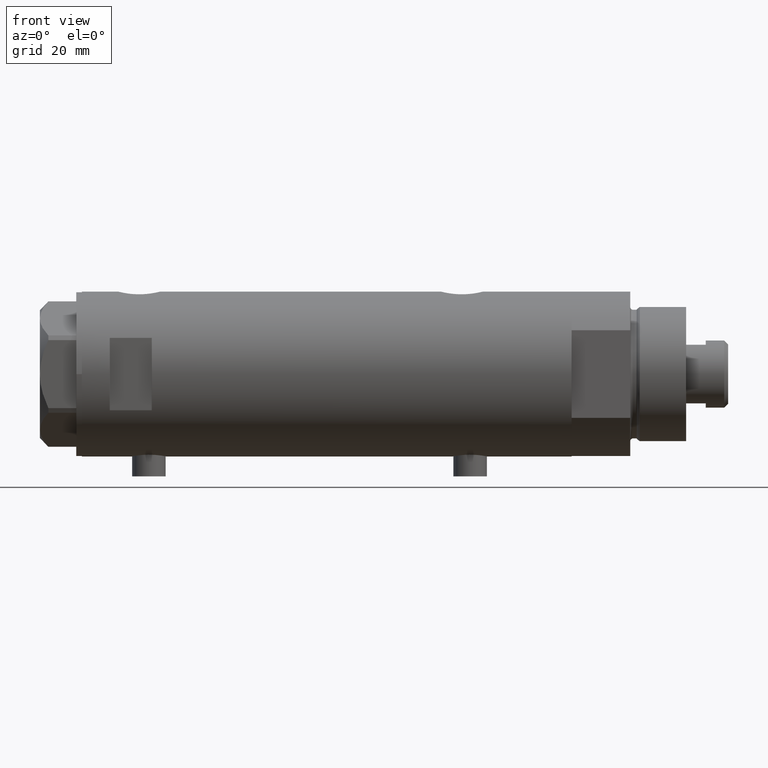
[diagram: clean part render]
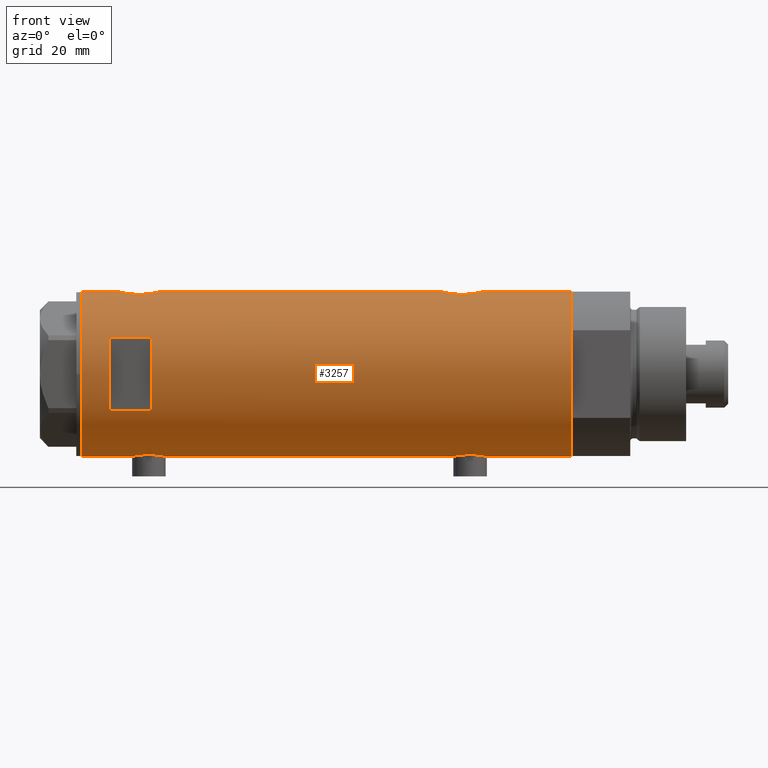
[diagram: same view with one face highlighted and labeled with its STEP entity id]
A machine part, front view. The second image highlights one B-rep face of the part: STEP entity #3257.
In plain terms, the highlighted cylindrical surface (partial cylindrical patch) has radius 29.5 mm, axis along (-1, -0, 0).
Its self-contained STEP definition (entity closure, byte-faithful):
#24 = CARTESIAN_POINT ( 'NONE',  ( 29.50000000000000355, -8.867894669064240341E-21, 74.59999999999999432 ) ) ;
#33 = DIRECTION ( 'NONE',  ( 0.000000000000000000, 0.000000000000000000, 1.000000000000000000 ) ) ;
#51 = EDGE_CURVE ( 'NONE', #3765, #1134, #477, .T. ) ;
#67 = CARTESIAN_POINT ( 'NONE',  ( -29.50000000000000355, 3.612708057484692393E-15, -87.59999999999999432 ) ) ;
#74 = CARTESIAN_POINT ( 'NONE',  ( -29.49152014567325253, -0.8152473631539818300, -57.51035294833331335 ) ) ;
#90 = DIRECTION ( 'NONE',  ( 0.000000000000000000, 0.000000000000000000, 1.000000000000000000 ) ) ;
#135 = CARTESIAN_POINT ( 'NONE',  ( 29.26166309680877475, -3.765013078516707967, 60.59489767946936212 ) ) ;
#146 = CARTESIAN_POINT ( 'NONE',  ( -29.21108587560690495, -4.128853169727751293, 58.89032723090409149 ) ) ;
#155 = CARTESIAN_POINT ( 'NONE',  ( 29.26065241255351523, -3.756597382275435493, 73.59604434819190999 ) ) ;
#165 = CARTESIAN_POINT ( 'NONE',  ( -29.33428005013169226, -3.127775714777723426, 58.18506796127407199 ) ) ;
#174 = CARTESIAN_POINT ( 'NONE',  ( 0.000000000000000000, 0.000000000000000000, -87.59999999999999432 ) ) ;
#179 = CARTESIAN_POINT ( 'NONE',  ( 29.31311917412636348, -3.322476152549144413, 73.82842985264291258 ) ) ;
#204 = CARTESIAN_POINT ( 'NONE',  ( 28.72051071455671334, -6.739402597165489617, -51.72718973703752710 ) ) ;
#226 = CARTESIAN_POINT ( 'NONE',  ( 28.72151714661536204, -6.735173278284145582, -45.06359529429126098 ) ) ;
#233 = CARTESIAN_POINT ( 'NONE',  ( -28.87532468301956712, -6.038983942005351047, 61.97670632311463379 ) ) ;
#235 = VECTOR ( 'NONE', #2536, 1000.000000000000000 ) ;
#259 = CARTESIAN_POINT ( 'NONE',  ( -29.08006251441183565, -4.961575945539723698, 67.40618502052524263 ) ) ;
#260 = EDGE_CURVE ( 'NONE', #1134, #1196, #675, .T. ) ;
#274 = CARTESIAN_POINT ( 'NONE',  ( 28.53064705443910043, -7.500145243772282200, -48.89244703291117844 ) ) ;
#281 = CARTESIAN_POINT ( 'NONE',  ( 29.50000000000000355, 0.000000000000000000, -87.59999999999999432 ) ) ;
#337 = CARTESIAN_POINT ( 'NONE',  ( 29.50000000000000355, -8.867894669064240341E-21, -40.89999999999999858 ) ) ;
#383 = CARTESIAN_POINT ( 'NONE',  ( 29.43916859571210409, -1.954329820671502960, 59.84235520757910365 ) ) ;
#394 = CARTESIAN_POINT ( 'NONE',  ( -29.12379578281189296, -4.705261494361431041, -55.43387957720276660 ) ) ;
#402 = CARTESIAN_POINT ( 'NONE',  ( -29.12311479234994849, -4.702282052053738504, -47.17776471113516124 ) ) ;
#423 = VERTEX_POINT ( 'NONE', #984 ) ;
#427 = CARTESIAN_POINT ( 'NONE',  ( -29.14490888978862415, -4.565669626908229084, -47.02701820123782994 ) ) ;
#443 = VERTEX_POINT ( 'NONE', #1006 ) ;
#448 = CARTESIAN_POINT ( 'NONE',  ( -28.83028160285195440, -6.250189016175739631, -50.89032996785321927 ) ) ;
#462 = CARTESIAN_POINT ( 'NONE',  ( -29.41741605749266952, -2.213861184585005137, -45.45168825548628178 ) ) ;
#473 = VECTOR ( 'NONE', #674, 1000.000000000000000 ) ;
#474 = DIRECTION ( 'NONE',  ( 0.000000000000000000, 0.000000000000000000, 1.000000000000000000 ) ) ;
#477 = LINE ( 'NONE', #2517, #235 ) ;
#512 = DIRECTION ( 'NONE',  ( -0.000000000000000000, -4.625929269271487689E-15, 1.000000000000000000 ) ) ;
#516 = CARTESIAN_POINT ( 'NONE',  ( 28.95619957017310853, -5.640369376407880608, 72.04939726490175644 ) ) ;
#520 = CARTESIAN_POINT ( 'NONE',  ( 28.86327882047615034, -6.097569254709688913, -44.02632909088551827 ) ) ;
#573 = CARTESIAN_POINT ( 'NONE',  ( 12.96148139681573319, -26.49999999999998934, 62.59999999999998721 ) ) ;
#575 = CARTESIAN_POINT ( 'NONE',  ( -12.96148139681573319, -26.49999999999998934, 77.60000000000002274 ) ) ;
#581 = CARTESIAN_POINT ( 'NONE',  ( -28.91427970886709886, -5.849862889315915915, 61.39006866871145718 ) ) ;
#592 = CARTESIAN_POINT ( 'NONE',  ( 29.08168479815708451, -4.954011967599717181, -54.03627368515270035 ) ) ;
#601 = CIRCLE ( 'NONE', #3134, 29.50000000000000355 ) ;
#622 = CARTESIAN_POINT ( 'NONE',  ( 28.59337635119608123, -7.258007499531542450, -46.44783774348638872 ) ) ;
#635 = CARTESIAN_POINT ( 'NONE',  ( -29.50000000000000355, -1.989795151372050188E-15, -45.04999999999999005 ) ) ;
#653 = ORIENTED_EDGE ( 'NONE', *, *, #1883, .F. ) ;
#660 = VERTEX_POINT ( 'NONE', #2650 ) ;
#668 = DIRECTION ( 'NONE',  ( 0.000000000000000000, 0.000000000000000000, 1.000000000000000000 ) ) ;
#674 = DIRECTION ( 'NONE',  ( 0.000000000000000000, 0.000000000000000000, 1.000000000000000000 ) ) ;
#675 = CIRCLE ( 'NONE', #2109, 29.50000000000000355 ) ;
#692 = VECTOR ( 'NONE', #474, 1000.000000000000000 ) ;
#730 = B_SPLINE_CURVE_WITH_KNOTS ( 'NONE', 3,
 ( #2178, #3470, #74, #763, #1117, #4241, #3131, #1773, #1455, #3558, #1416, #394, #2134, #2521, #2449, #2496, #1437, #3887, #792, #2563, #3187, #2164, #448, #2952, #2607, #2708, #4089, #2823, #3227, #1125, #402, #427, #2454, #796, #741, #3184, #462, #2159, #3546, #2060, #1413, #2131, #1516 ),
 .UNSPECIFIED., .F., .F.,
 ( 4, 2, 2, 2, 2, 2, 2, 2, 2, 1, 2, 2, 2, 2, 2, 2, 2, 2, 2, 2, 2, 4 ),
 ( 0.01959598605283713324, 0.02082041500883365093, 0.02204484396483016515, 0.02265705844282842399, 0.02326927292082667936, 0.02449370187682318317, 0.02571813083281968698, 0.02694255978881619079, 0.02755477426681445310, 0.02816698874481271542, 0.02877920322281097426, 0.02939141770080923657, 0.03061584665680577855, 0.03184027561280232399, 0.03306470456879886943, 0.03367691904679714215, 0.03428913352479541488, 0.03551356248079197420, 0.03673799143678854046, 0.03735020591478682705, 0.03796242039278510672, 0.03918684934878167297 ),
 .UNSPECIFIED. ) ;
#731 = CARTESIAN_POINT ( 'NONE',  ( 29.40305664607911140, -2.432276947006145829, 59.98852198993411378 ) ) ;
#741 = CARTESIAN_POINT ( 'NONE',  ( -29.33479068874800433, -3.136645782783870295, -45.87844745385529421 ) ) ;
#744 = DIRECTION ( 'NONE',  ( -0.000000000000000000, -0.000000000000000000, -1.000000000000000000 ) ) ;
#753 = CARTESIAN_POINT ( 'NONE',  ( 28.59279484545187344, -7.260293545345771982, 65.15593442015531878 ) ) ;
#763 = CARTESIAN_POINT ( 'NONE',  ( -29.45797511864983420, -1.625450914296657334, -57.34905127530046087 ) ) ;
#769 = CIRCLE ( 'NONE', #4007, 29.50000000000000355 ) ;
#792 = CARTESIAN_POINT ( 'NONE',  ( -28.85437274499025406, -6.138402965889069307, -52.52756596705081904 ) ) ;
#796 = CARTESIAN_POINT ( 'NONE',  ( -29.25361239466581154, -3.820294933898107814, -46.33642010285959145 ) ) ;
#805 = EDGE_CURVE ( 'NONE', #443, #1452, #601, .T. ) ;
#812 = CYLINDRICAL_SURFACE ( 'NONE', #1264, 29.50000000000000355 ) ;
#815 = CARTESIAN_POINT ( 'NONE',  ( 29.08168479815707386, -4.954011967599708299, 61.46372631484727833 ) ) ;
#855 = CARTESIAN_POINT ( 'NONE',  ( -28.83034328164762528, -6.249904501012242264, 63.39085460435941854 ) ) ;
#874 = CARTESIAN_POINT ( 'NONE',  ( -29.50000000000000355, 3.612706708236066082E-15, 57.34999999999998721 ) ) ;
#887 = CARTESIAN_POINT ( 'NONE',  ( 28.54678862679669038, -7.438514536388029619, -47.41041725679210828 ) ) ;
#919 = CARTESIAN_POINT ( 'NONE',  ( 29.40378957563275009, -2.423455993307766398, -41.28550539884014370 ) ) ;
#927 = CARTESIAN_POINT ( 'NONE',  ( -29.12379578281188586, -4.705261494361431041, 59.46612042279722488 ) ) ;
#937 = CARTESIAN_POINT ( 'NONE',  ( 28.59279484545186989, -7.260293545345763100, -50.34406557984473096 ) ) ;
#962 = CARTESIAN_POINT ( 'NONE',  ( -29.14490888978862770, -4.565669626908225531, 67.87298179876214022 ) ) ;
#974 = ORIENTED_EDGE ( 'NONE', *, *, #805, .T. ) ;
#978 = VECTOR ( 'NONE', #668, 1000.000000000000000 ) ;
#984 = CARTESIAN_POINT ( 'NONE',  ( -29.50000000000000355, -3.685106651658548747E-16, 69.84999999999999432 ) ) ;
#1006 = CARTESIAN_POINT ( 'NONE',  ( -29.50000000000000355, 3.612708057484692393E-15, -87.59999999999999432 ) ) ;
#1030 = CARTESIAN_POINT ( 'NONE',  ( -29.33479068874799722, -3.136645782783865410, 69.02155254614469015 ) ) ;
#1086 = CARTESIAN_POINT ( 'NONE',  ( 29.49999999999999289, -0.4976091310423251812, 59.59999999999998721 ) ) ;
#1107 = CARTESIAN_POINT ( 'NONE',  ( 29.48742104091791560, -0.9879539515379935910, 59.64904301646021167 ) ) ;
#1117 = CARTESIAN_POINT ( 'NONE',  ( -29.43333839972900634, -2.017691896334575574, -57.22935989047839200 ) ) ;
#1125 = CARTESIAN_POINT ( 'NONE',  ( -29.08006251441182854, -4.961575945539730803, -47.49381497947474884 ) ) ;
#1134 = VERTEX_POINT ( 'NONE', #1148 ) ;
#1138 = CARTESIAN_POINT ( 'NONE',  ( 28.62983003203746435, -7.114781472982441457, 64.67726941146263187 ) ) ;
#1148 = CARTESIAN_POINT ( 'NONE',  ( 12.96148139681573319, -26.49999999999998934, 77.60000000000002274 ) ) ;
#1155 = CARTESIAN_POINT ( 'NONE',  ( 28.89374847711160754, -5.952001739005052805, 62.53016018920364161 ) ) ;
#1193 = CARTESIAN_POINT ( 'NONE',  ( -28.84137202824161150, -6.198846007008987691, 62.77611738876123582 ) ) ;
#1196 = VERTEX_POINT ( 'NONE', #575 ) ;
#1199 = CARTESIAN_POINT ( 'NONE',  ( 29.50000000000000355, 0.000000000000000000, -87.59999999999999432 ) ) ;
#1207 = ORIENTED_EDGE ( 'NONE', *, *, #1514, .F. ) ;
#1206 = CARTESIAN_POINT ( 'NONE',  ( 29.23250901027695647, -3.968959760999262176, 73.46846017287660402 ) ) ;
#1211 = CARTESIAN_POINT ( 'NONE',  ( 29.48742104091792982, -0.9879539515379943682, -55.85095698353980964 ) ) ;
#1253 = CARTESIAN_POINT ( 'NONE',  ( 28.98816846638396072, -5.474212100855873508, -43.26747840116693311 ) ) ;
#1264 = AXIS2_PLACEMENT_3D ( 'NONE', #1424, #2182, #2141 ) ;
#1282 = CARTESIAN_POINT ( 'NONE',  ( 29.31438578683259522, -3.335040812377227937, -55.13547276843772238 ) ) ;
#1305 = CARTESIAN_POINT ( 'NONE',  ( 28.95619957017310497, -5.640369376407877056, -43.45060273509821513 ) ) ;
#1379 = CARTESIAN_POINT ( 'NONE',  ( -29.45566469296798928, -1.628675872921093726, 69.63756032628675996 ) ) ;
#1390 = CARTESIAN_POINT ( 'NONE',  ( -29.50000000000000355, 3.612708057484692393E-15, -87.59999999999999432 ) ) ;
#1395 = CARTESIAN_POINT ( 'NONE',  ( -29.37136442049236962, -2.777615426151009981, 69.21365112622116555 ) ) ;
#1405 = EDGE_LOOP ( 'NONE', ( #2520, #653, #3842, #3289 ) ) ;
#1413 = CARTESIAN_POINT ( 'NONE',  ( -29.49128673965872238, -0.8227026017531590130, -45.09075558927904126 ) ) ;
#1416 = CARTESIAN_POINT ( 'NONE',  ( -29.21108587560690495, -4.128853169727750405, -56.00967276909590709 ) ) ;
#1424 = CARTESIAN_POINT ( 'NONE',  ( 0.000000000000000000, 0.000000000000000000, -87.59999999999999432 ) ) ;
#1437 = CARTESIAN_POINT ( 'NONE',  ( -28.89999183068148625, -5.919812056825922042, -53.31500238835418060 ) ) ;
#1452 = VERTEX_POINT ( 'NONE', #2749 ) ;
#1455 = CARTESIAN_POINT ( 'NONE',  ( -29.31475612970062627, -3.305202271067059883, -56.60847868843855224 ) ) ;
#1468 = CARTESIAN_POINT ( 'NONE',  ( 28.53064705443911464, -7.500145243772284864, 66.60755296708883577 ) ) ;
#1509 = CARTESIAN_POINT ( 'NONE',  ( 28.72051071455672044, -6.739402597165490505, 63.77281026296248712 ) ) ;
#1514 = EDGE_CURVE ( 'NONE', #2090, #3160, #730, .T. ) ;
#1516 = CARTESIAN_POINT ( 'NONE',  ( -29.50000000000000355, -1.989795151372050188E-15, -45.04999999999999005 ) ) ;
#1523 = CARTESIAN_POINT ( 'NONE',  ( -29.25427426731712544, -3.815048240656437439, 58.63259231846663511 ) ) ;
#1548 = CARTESIAN_POINT ( 'NONE',  ( -28.89999183068147559, -5.919812056825914048, 61.58499761164581798 ) ) ;
#1556 = CARTESIAN_POINT ( 'NONE',  ( 0.000000000000000000, 0.000000000000000000, 62.60000000000011511 ) ) ;
#1562 = CARTESIAN_POINT ( 'NONE',  ( 28.86327882047615034, -6.097569254709694242, 71.47367090911446041 ) ) ;
#1588 = CARTESIAN_POINT ( 'NONE',  ( 29.05028789344173745, -5.134328181356786480, -53.87246457606267569 ) ) ;
#1605 = CARTESIAN_POINT ( 'NONE',  ( 29.50000000000000355, -1.363453657738827866E-15, -55.89999999999999858 ) ) ;
#1634 = CARTESIAN_POINT ( 'NONE',  ( 29.26065241255352589, -3.756597382275444819, -41.90395565180811133 ) ) ;
#1647 = DIRECTION ( 'NONE',  ( 0.000000000000000000, 0.000000000000000000, 1.000000000000000000 ) ) ;
#1654 = CARTESIAN_POINT ( 'NONE',  ( 28.77541267587658780, -6.504036106227640168, -44.63371449864085605 ) ) ;
#1660 = CARTESIAN_POINT ( 'NONE',  ( -29.21016169868140366, -4.135295259288787051, 68.30390088086507205 ) ) ;
#1702 = ORIENTED_EDGE ( 'NONE', *, *, #4386, .F. ) ;
#1725 = ORIENTED_EDGE ( 'NONE', *, *, #4051, .F. ) ;
#1732 = CARTESIAN_POINT ( 'NONE',  ( -29.41741605749265887, -2.213861184585002917, 69.44831174451371680 ) ) ;
#1770 = VERTEX_POINT ( 'NONE', #2896 ) ;
#1773 = CARTESIAN_POINT ( 'NONE',  ( -29.33428005013168871, -3.127775714777722982, -56.71493203872592659 ) ) ;
#1809 = LINE ( 'NONE', #67, #2569 ) ;
#1819 = VERTEX_POINT ( 'NONE', #1947 ) ;
#1875 = CARTESIAN_POINT ( 'NONE',  ( -29.45797511864983420, -1.625450914296658667, 57.55094872469953060 ) ) ;
#1883 = EDGE_CURVE ( 'NONE', #1196, #4257, #3866, .T. ) ;
#1886 = CARTESIAN_POINT ( 'NONE',  ( 28.89374408016309914, -5.952042782108793340, 71.66984537025965096 ) ) ;
#1901 = CARTESIAN_POINT ( 'NONE',  ( -28.83260549167351527, -6.239494599049532297, 63.18384915698199933 ) ) ;
#1917 = CARTESIAN_POINT ( 'NONE',  ( 29.50000000000001066, -0.4905639552620955079, -40.89999999999999858 ) ) ;
#1939 = CARTESIAN_POINT ( 'NONE',  ( 29.50000000000000355, -8.867894669064240341E-21, -40.89999999999999858 ) ) ;
#1946 = ORIENTED_EDGE ( 'NONE', *, *, #2198, .F. ) ;
#1947 = CARTESIAN_POINT ( 'NONE',  ( 29.50000000000000355, -8.867894669064240341E-21, 74.59999999999999432 ) ) ;
#1957 = CARTESIAN_POINT ( 'NONE',  ( 28.62986945670068550, -7.114680680403729696, -45.97606223993307850 ) ) ;
#1986 = LINE ( 'NONE', #2304, #4011 ) ;
#1991 = CARTESIAN_POINT ( 'NONE',  ( 28.86290657878785737, -6.099358034152089658, -52.77130670042607363 ) ) ;
#2017 = CARTESIAN_POINT ( 'NONE',  ( -29.12311479234994493, -4.702282052053730510, 67.72223528886479471 ) ) ;
#2029 = EDGE_CURVE ( 'NONE', #1819, #1770, #3018, .T. ) ;
#2060 = CARTESIAN_POINT ( 'NONE',  ( -29.46613381094001483, -1.427468570127977010, -45.21172459459599935 ) ) ;
#2090 = VERTEX_POINT ( 'NONE', #3412 ) ;
#2109 = AXIS2_PLACEMENT_3D ( 'NONE', #3096, #3782, #3441 ) ;
#2111 = EDGE_CURVE ( 'NONE', #3103, #3539, #4283, .T. ) ;
#2131 = CARTESIAN_POINT ( 'NONE',  ( -29.50000000000000711, -0.4141077724969866591, -45.04999999999999005 ) ) ;
#2134 = CARTESIAN_POINT ( 'NONE',  ( -29.07948744859177381, -4.968520850090770935, -55.11336367378893186 ) ) ;
#2141 = DIRECTION ( 'NONE',  ( 1.000000000000000000, 0.000000000000000000, 0.000000000000000000 ) ) ;
#2159 = CARTESIAN_POINT ( 'NONE',  ( -29.43130053621386111, -2.021711243143700543, -45.38244954039817003 ) ) ;
#2164 = CARTESIAN_POINT ( 'NONE',  ( -28.83034328164761462, -6.249904501012249369, -51.50914539564058003 ) ) ;
#2167 = B_SPLINE_CURVE_WITH_KNOTS ( 'NONE', 3,
 ( #24, #4408, #2693, #3343, #4381, #2325, #179, #155, #1206, #3961, #2239, #3623, #516, #1886, #1562, #2941, #2597, #3978, #4230, #2168, #3170, #2895, #4205, #1468, #2854, #753, #1138, #1509, #2512, #2878, #1155, #2486, #2530, #3909, #815, #3236, #2832, #135, #3830, #731, #383, #1107, #1086, #2466 ),
 .UNSPECIFIED., .F., .F.,
 ( 4, 2, 2, 2, 2, 2, 2, 2, 2, 2, 2, 2, 2, 2, 2, 2, 2, 2, 2, 2, 2, 4 ),
 ( 0.02354540741801906811, 0.02501659793198017859, 0.02648778844594128906, 0.02722338370292184256, 0.02795897895990239954, 0.02943016947386351001, 0.03016576473084408433, 0.03090135998782465171, 0.03237255050178579341, 0.03384374101574693511, 0.03457933627272750943, 0.03531493152970807681, 0.03678612204366921851, 0.03825731255763036021, 0.03972850307159149497, 0.04046409832857204847, 0.04119969358555261585, 0.04193528884253318323, 0.04267088409951375061, 0.04414207461347488537, 0.04561326512743602707, 0.04708445564139716183 ),
 .UNSPECIFIED. ) ;
#2168 = CARTESIAN_POINT ( 'NONE',  ( 28.55627543367308618, -7.402134446380869370, 68.33219650318235949 ) ) ;
#2172 = DIRECTION ( 'NONE',  ( 0.000000000000000000, 0.000000000000000000, 1.000000000000000000 ) ) ;
#2178 = CARTESIAN_POINT ( 'NONE',  ( -29.50000000000000355, 3.612706708267620518E-15, -57.55000000000000426 ) ) ;
#2182 = DIRECTION ( 'NONE',  ( 0.000000000000000000, 0.000000000000000000, 1.000000000000000000 ) ) ;
#2198 = EDGE_CURVE ( 'NONE', #423, #3885, #1809, .T. ) ;
#2201 = VECTOR ( 'NONE', #744, 1000.000000000000000 ) ;
#2227 = CARTESIAN_POINT ( 'NONE',  ( -28.83028160285196151, -6.250189016175732526, 64.00967003214678641 ) ) ;
#2239 = CARTESIAN_POINT ( 'NONE',  ( 29.08294968506023181, -4.955368226349210481, 72.75096718198464885 ) ) ;
#2265 = CARTESIAN_POINT ( 'NONE',  ( 29.17410189149616428, -4.377709617224021521, -54.49475827476019418 ) ) ;
#2268 = AXIS2_PLACEMENT_3D ( 'NONE', #3182, #33, #2802 ) ;
#2304 = CARTESIAN_POINT ( 'NONE',  ( -29.50000000000000355, 3.612708057484692393E-15, -87.59999999999999432 ) ) ;
#2309 = CARTESIAN_POINT ( 'NONE',  ( 29.14531914445117522, -4.579221598645967006, -42.44009767007190703 ) ) ;
#2325 = CARTESIAN_POINT ( 'NONE',  ( 29.33743940633120673, -3.100990836771692294, 73.93327512439066140 ) ) ;
#2330 = CARTESIAN_POINT ( 'NONE',  ( 28.89374408016308848, -5.952042782108791563, -43.83015462974033483 ) ) ;
#2367 = CARTESIAN_POINT ( 'NONE',  ( -29.43130053621386111, -2.021711243143687664, 69.51755045960182144 ) ) ;
#2449 = CARTESIAN_POINT ( 'NONE',  ( -28.96147498926092112, -5.613273026676372623, -54.07892698342580218 ) ) ;
#2454 = CARTESIAN_POINT ( 'NONE',  ( -29.21016169868139656, -4.135295259288792380, -46.59609911913489810 ) ) ;
#2458 = CARTESIAN_POINT ( 'NONE',  ( -12.96148139681573319, -26.49999999999999645, -87.59999999999999432 ) ) ;
#2466 = CARTESIAN_POINT ( 'NONE',  ( 29.50000000000000355, -2.136503572369537054E-15, 59.59999999999999432 ) ) ;
#2473 = ORIENTED_EDGE ( 'NONE', *, *, #3876, .F. ) ;
#2486 = CARTESIAN_POINT ( 'NONE',  ( 28.95592074821773210, -5.641779806288288235, 62.15226504197970314 ) ) ;
#2496 = CARTESIAN_POINT ( 'NONE',  ( -28.91427970886711307, -5.849862889315922132, -53.50993133128852008 ) ) ;
#2506 = FACE_OUTER_BOUND ( 'NONE', #3458, .T. ) ;
#2512 = CARTESIAN_POINT ( 'NONE',  ( 28.77424839213764329, -6.509286280845849149, 63.34218748394043530 ) ) ;
#2517 = CARTESIAN_POINT ( 'NONE',  ( 12.96148139681573319, -26.49999999999999645, -87.59999999999999432 ) ) ;
#2520 = ORIENTED_EDGE ( 'NONE', *, *, #3704, .F. ) ;
#2521 = CARTESIAN_POINT ( 'NONE',  ( -28.99856997507319534, -5.420860550814444956, -54.43723012145802187 ) ) ;
#2530 = CARTESIAN_POINT ( 'NONE',  ( 28.98740664105171660, -5.478212189394656484, 61.97180483814205587 ) ) ;
#2536 = DIRECTION ( 'NONE',  ( 0.000000000000000000, 0.000000000000000000, 1.000000000000000000 ) ) ;
#2538 = CARTESIAN_POINT ( 'NONE',  ( -12.96148139681573319, -26.49999999999998934, 62.59999999999998721 ) ) ;
#2563 = CARTESIAN_POINT ( 'NONE',  ( -28.84137202824161861, -6.198846007008993908, -52.12388261123874145 ) ) ;
#2569 = VECTOR ( 'NONE', #90, 1000.000000000000000 ) ;
#2586 = CARTESIAN_POINT ( 'NONE',  ( 29.23250901027695647, -3.968959760999266617, -42.03153982712338177 ) ) ;
#2590 = CARTESIAN_POINT ( 'NONE',  ( -28.96072448608914840, -5.617106371651694907, 66.37082731660440515 ) ) ;
#2597 = CARTESIAN_POINT ( 'NONE',  ( 28.72151714661535848, -6.735173278284142917, 70.43640470570873902 ) ) ;
#2607 = CARTESIAN_POINT ( 'NONE',  ( -28.87288655002252113, -6.050870399762851015, -49.68249459278194990 ) ) ;
#2624 = CARTESIAN_POINT ( 'NONE',  ( 29.48775985681159284, -0.9798361908152568578, -40.94769556118675524 ) ) ;
#2650 = CARTESIAN_POINT ( 'NONE',  ( 29.50000000000000355, -1.363453657738827866E-15, -55.89999999999999858 ) ) ;
#2658 = CARTESIAN_POINT ( 'NONE',  ( -29.43333839972900634, -2.017691896334577351, 57.67064010952157105 ) ) ;
#2672 = CARTESIAN_POINT ( 'NONE',  ( 28.55627543367308618, -7.402134446380870259, -47.16780349681763340 ) ) ;
#2673 = CARTESIAN_POINT ( 'NONE',  ( -29.50000000000000355, 3.612706708236066082E-15, 57.34999999999998721 ) ) ;
#2693 = CARTESIAN_POINT ( 'NONE',  ( 29.48775985681159284, -0.9798361908152555255, 74.55230443881325186 ) ) ;
#2708 = CARTESIAN_POINT ( 'NONE',  ( -28.89828397447510255, -5.929977241120610643, -49.28388047758001989 ) ) ;
#2732 = CARTESIAN_POINT ( 'NONE',  ( -29.25361239466581154, -3.820294933898098488, 68.56357989714038581 ) ) ;
#2749 = CARTESIAN_POINT ( 'NONE',  ( 29.50000000000000355, 0.000000000000000000, -87.59999999999999432 ) ) ;
#2755 = ORIENTED_EDGE ( 'NONE', *, *, #2944, .F. ) ;
#2776 = LINE ( 'NONE', #4439, #473 ) ;
#2796 = EDGE_CURVE ( 'NONE', #3969, #423, #3202, .T. ) ;
#2799 = EDGE_CURVE ( 'NONE', #1452, #660, #2776, .T. ) ;
#2802 = DIRECTION ( 'NONE',  ( 1.000000000000000000, 0.000000000000000000, 0.000000000000000000 ) ) ;
#2823 = CARTESIAN_POINT ( 'NONE',  ( -28.99772237063718094, -5.425436006677739620, -48.17037325447357432 ) ) ;
#2832 = CARTESIAN_POINT ( 'NONE',  ( 29.17410189149616428, -4.377709617224024186, 61.00524172523977740 ) ) ;
#2854 = CARTESIAN_POINT ( 'NONE',  ( 28.54347630091234933, -7.451827970232792531, 66.11943218216043761 ) ) ;
#2876 = ORIENTED_EDGE ( 'NONE', *, *, #2111, .T. ) ;
#2878 = CARTESIAN_POINT ( 'NONE',  ( 28.86290657878784671, -6.099358034152101204, 62.72869329957394058 ) ) ;
#2895 = CARTESIAN_POINT ( 'NONE',  ( 28.53399451186755087, -7.487442594623177961, 67.59897485501115000 ) ) ;
#2896 = CARTESIAN_POINT ( 'NONE',  ( 29.50000000000000355, 0.000000000000000000, 87.59999999999999432 ) ) ;
#2909 = CARTESIAN_POINT ( 'NONE',  ( -28.99856997507319534, -5.420860550814439627, 60.46276987854197671 ) ) ;
#2934 = CARTESIAN_POINT ( 'NONE',  ( -28.87288655002252113, -6.050870399762837692, 65.21750540721804157 ) ) ;
#2941 = CARTESIAN_POINT ( 'NONE',  ( 28.77541267587657003, -6.504036106227640168, 70.86628550135910132 ) ) ;
#2944 = EDGE_CURVE ( 'NONE', #3885, #1770, #3863, .T. ) ;
#2951 = CARTESIAN_POINT ( 'NONE',  ( -29.49152014567325253, -0.8152473631539829402, 57.38964705166666391 ) ) ;
#2952 = CARTESIAN_POINT ( 'NONE',  ( -28.83909499632370199, -6.209928350489668958, -50.48382218917042508 ) ) ;
#2964 = ORIENTED_EDGE ( 'NONE', *, *, #3764, .F. ) ;
#2965 = CARTESIAN_POINT ( 'NONE',  ( 29.14351131874355261, -4.576283785862462317, -54.34705324848517449 ) ) ;
#2987 = CARTESIAN_POINT ( 'NONE',  ( 29.26166309680877475, -3.765013078516705303, -54.90510232053061657 ) ) ;
#3018 = LINE ( 'NONE', #281, #3579 ) ;
#3037 = DIRECTION ( 'NONE',  ( 0.000000000000000000, 0.000000000000000000, 1.000000000000000000 ) ) ;
#3096 = CARTESIAN_POINT ( 'NONE',  ( 0.000000000000000000, 0.000000000000000000, 77.60000000000002274 ) ) ;
#3103 = VERTEX_POINT ( 'NONE', #337 ) ;
#3109 = CARTESIAN_POINT ( 'NONE',  ( -29.50000000000000355, -3.685106651658548747E-16, 69.84999999999999432 ) ) ;
#3126 = CARTESIAN_POINT ( 'NONE',  ( 29.50000000000000355, -2.136503572369537054E-15, 59.59999999999999432 ) ) ;
#3131 = CARTESIAN_POINT ( 'NONE',  ( -29.37055817176825556, -2.766456155496577196, -56.90813607588912504 ) ) ;
#3134 = AXIS2_PLACEMENT_3D ( 'NONE', #174, #2172, #3238 ) ;
#3160 = VERTEX_POINT ( 'NONE', #635 ) ;
#3170 = CARTESIAN_POINT ( 'NONE',  ( 28.54678862679669749, -7.438514536388028731, 68.08958274320792725 ) ) ;
#3182 = CARTESIAN_POINT ( 'NONE',  ( 0.000000000000000000, 0.000000000000000000, 87.59999999999999432 ) ) ;
#3184 = CARTESIAN_POINT ( 'NONE',  ( -29.37136442049237317, -2.777615426151012201, -45.68634887377884013 ) ) ;
#3187 = CARTESIAN_POINT ( 'NONE',  ( -28.83260549167351527, -6.239494599049535850, -51.71615084301800636 ) ) ;
#3202 = B_SPLINE_CURVE_WITH_KNOTS ( 'NONE', 3,
 ( #874, #3248, #2951, #1875, #2658, #4018, #3265, #165, #4371, #1523, #146, #927, #3334, #2909, #4040, #581, #1548, #233, #4277, #1193, #1901, #855, #2227, #3612, #2934, #4304, #2590, #3971, #3631, #259, #2017, #962, #1660, #2732, #1030, #1395, #1732, #2367, #1379, #3754, #4416, #3456, #3109 ),
 .UNSPECIFIED., .F., .F.,
 ( 4, 2, 2, 2, 2, 2, 2, 2, 2, 1, 2, 2, 2, 2, 2, 2, 2, 2, 2, 2, 2, 4 ),
 ( 0.01959598605283711936, 0.02082041500883364399, 0.02204484396483016861, 0.02265705844282843093, 0.02326927292082668977, 0.02449370187682321787, 0.02571813083281974943, 0.02694255978881627753, 0.02755477426681453290, 0.02816698874481278828, 0.02877920322281106447, 0.02939141770080933719, 0.03061584665680588957, 0.03184027561280244195, 0.03306470456879899433, 0.03367691904679727399, 0.03428913352479554671, 0.03551356248079207134, 0.03673799143678858903, 0.03735020591478684787, 0.03796242039278510672, 0.03918684934878163828 ),
 .UNSPECIFIED. ) ;
#3227 = CARTESIAN_POINT ( 'NONE',  ( -29.05872136210574297, -5.084685578900233871, -47.65990008091242203 ) ) ;
#3236 = CARTESIAN_POINT ( 'NONE',  ( 29.14351131874355971, -4.576283785862454323, 61.15294675151478287 ) ) ;
#3238 = DIRECTION ( 'NONE',  ( 1.000000000000000000, 0.000000000000000000, 0.000000000000000000 ) ) ;
#3248 = CARTESIAN_POINT ( 'NONE',  ( -29.50000000000000711, -0.4084468586314314309, 57.35000000000000142 ) ) ;
#3257 = ADVANCED_FACE ( 'NONE', ( #2506, #3477 ), #812, .T. ) ;
#3265 = CARTESIAN_POINT ( 'NONE',  ( -29.37055817176824490, -2.766456155496578084, 57.99186392411088775 ) ) ;
#3271 = DIRECTION ( 'NONE',  ( 1.776356839400250267E-15, 1.000000000000000000, 4.704334850106595203E-15 ) ) ;
#3283 = CARTESIAN_POINT ( 'NONE',  ( 29.33743940633121028, -3.100990836771690073, -41.56672487560935281 ) ) ;
#3289 = ORIENTED_EDGE ( 'NONE', *, *, #51, .F. ) ;
#3304 = CARTESIAN_POINT ( 'NONE',  ( 29.31311917412636348, -3.322476152549152406, -41.67157014735705189 ) ) ;
#3327 = CARTESIAN_POINT ( 'NONE',  ( 28.77424839213763264, -6.509286280845835826, -52.15781251605955759 ) ) ;
#3334 = CARTESIAN_POINT ( 'NONE',  ( -29.07948744859177026, -4.968520850090769159, 59.78663632621105961 ) ) ;
#3343 = CARTESIAN_POINT ( 'NONE',  ( 29.43922820968270671, -1.954457150219034434, 74.35789347245773229 ) ) ;
#3350 = CARTESIAN_POINT ( 'NONE',  ( 28.89374847711160399, -5.952001739005051917, -52.96983981079635129 ) ) ;
#3376 = CARTESIAN_POINT ( 'NONE',  ( 28.95592074821772854, -5.641779806288289123, -53.34773495802030396 ) ) ;
#3412 = CARTESIAN_POINT ( 'NONE',  ( -29.50000000000000355, 3.612706708267620518E-15, -57.55000000000000426 ) ) ;
#3441 = DIRECTION ( 'NONE',  ( 1.000000000000000000, 0.000000000000000000, 0.000000000000000000 ) ) ;
#3450 = LINE ( 'NONE', #1390, #978 ) ;
#3456 = CARTESIAN_POINT ( 'NONE',  ( -29.50000000000000000, -0.4141077724969871032, 69.85000000000000853 ) ) ;
#3458 = EDGE_LOOP ( 'NONE', ( #1702, #974, #3544, #2964, #2876, #2473, #4009, #2755, #1946, #3585, #1725, #1207 ) ) ;
#3470 = CARTESIAN_POINT ( 'NONE',  ( -29.50000000000000711, -0.4084468586314279337, -57.55000000000000426 ) ) ;
#3477 = FACE_BOUND ( 'NONE', #1405, .T. ) ;
#3539 = VERTEX_POINT ( 'NONE', #3126 ) ;
#3544 = ORIENTED_EDGE ( 'NONE', *, *, #2799, .T. ) ;
#3546 = CARTESIAN_POINT ( 'NONE',  ( -29.45566469296797507, -1.628675872921105938, -45.26243967371323862 ) ) ;
#3558 = CARTESIAN_POINT ( 'NONE',  ( -29.25427426731712188, -3.815048240656438772, -56.26740768153337058 ) ) ;
#3579 = VECTOR ( 'NONE', #3037, 1000.000000000000000 ) ;
#3585 = ORIENTED_EDGE ( 'NONE', *, *, #2796, .F. ) ;
#3612 = CARTESIAN_POINT ( 'NONE',  ( -28.83909499632370199, -6.209928350489659188, 64.41617781082960903 ) ) ;
#3623 = CARTESIAN_POINT ( 'NONE',  ( 28.98816846638396427, -5.474212100855878838, 72.23252159883305978 ) ) ;
#3631 = CARTESIAN_POINT ( 'NONE',  ( -29.05872136210575363, -5.084685578900223213, 67.24009991908759787 ) ) ;
#3650 = CARTESIAN_POINT ( 'NONE',  ( 29.43922820968270671, -1.954457150219038208, -41.14210652754225350 ) ) ;
#3675 = CARTESIAN_POINT ( 'NONE',  ( 28.53070445389874976, -7.499926890973428684, -48.15046579487084699 ) ) ;
#3694 = CARTESIAN_POINT ( 'NONE',  ( 28.54347630091233867, -7.451827970232786313, -49.38056781783959792 ) ) ;
#3704 = EDGE_CURVE ( 'NONE', #4257, #3765, #769, .T. ) ;
#3754 = CARTESIAN_POINT ( 'NONE',  ( -29.46613381094001127, -1.427468570127964798, 69.68827540540398502 ) ) ;
#3764 = EDGE_CURVE ( 'NONE', #3103, #660, #4175, .T. ) ;
#3765 = VERTEX_POINT ( 'NONE', #573 ) ;
#3782 = DIRECTION ( 'NONE',  ( -0.000000000000000000, 0.000000000000000000, -1.000000000000000000 ) ) ;
#3830 = CARTESIAN_POINT ( 'NONE',  ( 29.31438578683260232, -3.335040812377226604, 60.36452723156224920 ) ) ;
#3842 = ORIENTED_EDGE ( 'NONE', *, *, #260, .F. ) ;
#3851 = CARTESIAN_POINT ( 'NONE',  ( -29.50000000000000355, 3.612708057484692393E-15, 87.59999999999999432 ) ) ;
#3863 = CIRCLE ( 'NONE', #2268, 29.50000000000000355 ) ;
#3866 = LINE ( 'NONE', #2458, #2201 ) ;
#3876 = EDGE_CURVE ( 'NONE', #1819, #3539, #2167, .T. ) ;
#3885 = VERTEX_POINT ( 'NONE', #3851 ) ;
#3887 = CARTESIAN_POINT ( 'NONE',  ( -28.87532468301956357, -6.038983942005355487, -52.92329367688535768 ) ) ;
#3909 = CARTESIAN_POINT ( 'NONE',  ( 29.05028789344172324, -5.134328181356783816, 61.62753542393731010 ) ) ;
#3961 = CARTESIAN_POINT ( 'NONE',  ( 29.14531914445117167, -4.579221598645962565, 73.05990232992806455 ) ) ;
#3964 = CARTESIAN_POINT ( 'NONE',  ( 29.50000000000000711, -0.4976091310423220726, -55.89999999999999858 ) ) ;
#3969 = VERTEX_POINT ( 'NONE', #2673 ) ;
#3971 = CARTESIAN_POINT ( 'NONE',  ( -28.99772237063718094, -5.425436006677728074, 66.72962674552641715 ) ) ;
#3978 = CARTESIAN_POINT ( 'NONE',  ( 28.62986945670069261, -7.114680680403731472, 69.52393776006691439 ) ) ;
#3983 = CARTESIAN_POINT ( 'NONE',  ( 29.08294968506023537, -4.955368226349206040, -42.74903281801533694 ) ) ;
#4007 = AXIS2_PLACEMENT_3D ( 'NONE', #1556, #512, #3271 ) ;
#4009 = ORIENTED_EDGE ( 'NONE', *, *, #2029, .T. ) ;
#4011 = VECTOR ( 'NONE', #1647, 1000.000000000000000 ) ;
#4018 = CARTESIAN_POINT ( 'NONE',  ( -29.38738983525000137, -2.582042051636497693, 57.90464828404618913 ) ) ;
#4040 = CARTESIAN_POINT ( 'NONE',  ( -28.96147498926091046, -5.613273026676365518, 60.82107301657418930 ) ) ;
#4051 = EDGE_CURVE ( 'NONE', #3160, #3969, #3450, .T. ) ;
#4052 = CARTESIAN_POINT ( 'NONE',  ( 28.62983003203746080, -7.114781472982439681, -50.82273058853737524 ) ) ;
#4089 = CARTESIAN_POINT ( 'NONE',  ( -28.96072448608914485, -5.617106371651703789, -48.52917268339558632 ) ) ;
#4175 = B_SPLINE_CURVE_WITH_KNOTS ( 'NONE', 3,
 ( #1939, #1917, #2624, #3650, #919, #3283, #3304, #1634, #2586, #2309, #3983, #1253, #1305, #2330, #520, #1654, #226, #1957, #622, #2672, #887, #4363, #3675, #274, #3694, #937, #4052, #204, #3327, #1991, #3350, #3376, #4296, #1588, #592, #2965, #2265, #2987, #1282, #4336, #4316, #1211, #3964, #1605 ),
 .UNSPECIFIED., .F., .F.,
 ( 4, 2, 2, 2, 2, 2, 2, 2, 2, 2, 2, 2, 2, 2, 2, 2, 2, 2, 2, 2, 2, 4 ),
 ( 0.02354540741801906811, 0.02501659793198015777, 0.02648778844594124743, 0.02722338370292179052, 0.02795897895990233362, 0.02943016947386341287, 0.03016576473084396290, 0.03090135998782451293, 0.03237255050178562688, 0.03384374101574673388, 0.03457933627272730126, 0.03531493152970786864, 0.03678612204366901728, 0.03825731255763017286, 0.03972850307159132843, 0.04046409832857190969, 0.04119969358555249095, 0.04193528884253308608, 0.04267088409951366734, 0.04414207461347482986, 0.04561326512743600625, 0.04708445564139716877 ),
 .UNSPECIFIED. ) ;
#4205 = CARTESIAN_POINT ( 'NONE',  ( 28.53070445389874621, -7.499926890973428684, 67.34953420512916011 ) ) ;
#4230 = CARTESIAN_POINT ( 'NONE',  ( 28.59337635119608123, -7.258007499531540674, 69.05216225651359707 ) ) ;
#4241 = CARTESIAN_POINT ( 'NONE',  ( -29.38738983525001558, -2.582042051636497693, -56.99535171595380945 ) ) ;
#4257 = VERTEX_POINT ( 'NONE', #2538 ) ;
#4277 = CARTESIAN_POINT ( 'NONE',  ( -28.85437274499025762, -6.138402965889063978, 62.37243403294917954 ) ) ;
#4283 = LINE ( 'NONE', #1199, #692 ) ;
#4296 = CARTESIAN_POINT ( 'NONE',  ( 28.98740664105171305, -5.478212189394655596, -53.52819516185792281 ) ) ;
#4304 = CARTESIAN_POINT ( 'NONE',  ( -28.89828397447510255, -5.929977241120604425, 65.61611952241995027 ) ) ;
#4316 = CARTESIAN_POINT ( 'NONE',  ( 29.43916859571211120, -1.954329820671499407, -55.65764479242087504 ) ) ;
#4336 = CARTESIAN_POINT ( 'NONE',  ( 29.40305664607911140, -2.432276947006147605, -55.51147801006586491 ) ) ;
#4363 = CARTESIAN_POINT ( 'NONE',  ( 28.53399451186755442, -7.487442594623181513, -47.90102514498886421 ) ) ;
#4371 = CARTESIAN_POINT ( 'NONE',  ( -29.31475612970062983, -3.305202271067059439, 58.29152131156144634 ) ) ;
#4381 = CARTESIAN_POINT ( 'NONE',  ( 29.40378957563274298, -2.423455993307769951, 74.21449460115982788 ) ) ;
#4386 = EDGE_CURVE ( 'NONE', #443, #2090, #1986, .T. ) ;
#4408 = CARTESIAN_POINT ( 'NONE',  ( 29.50000000000001066, -0.4905639552620957300, 74.59999999999998010 ) ) ;
#4416 = CARTESIAN_POINT ( 'NONE',  ( -29.49128673965871172, -0.8227026017531454682, 69.80924441072093600 ) ) ;
#4439 = CARTESIAN_POINT ( 'NONE',  ( 29.50000000000000355, 0.000000000000000000, -87.59999999999999432 ) ) ;